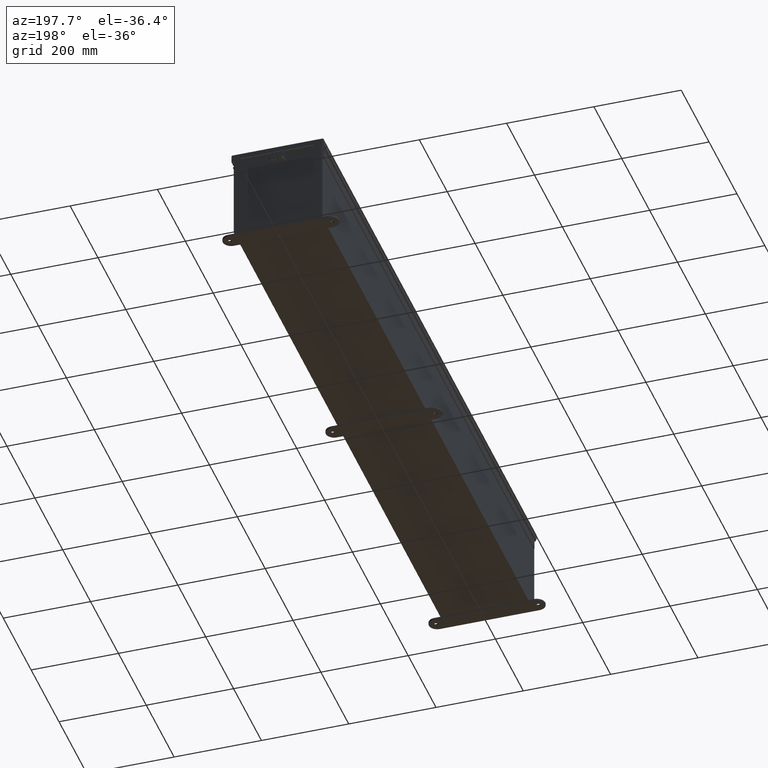
[diagram: clean part render]
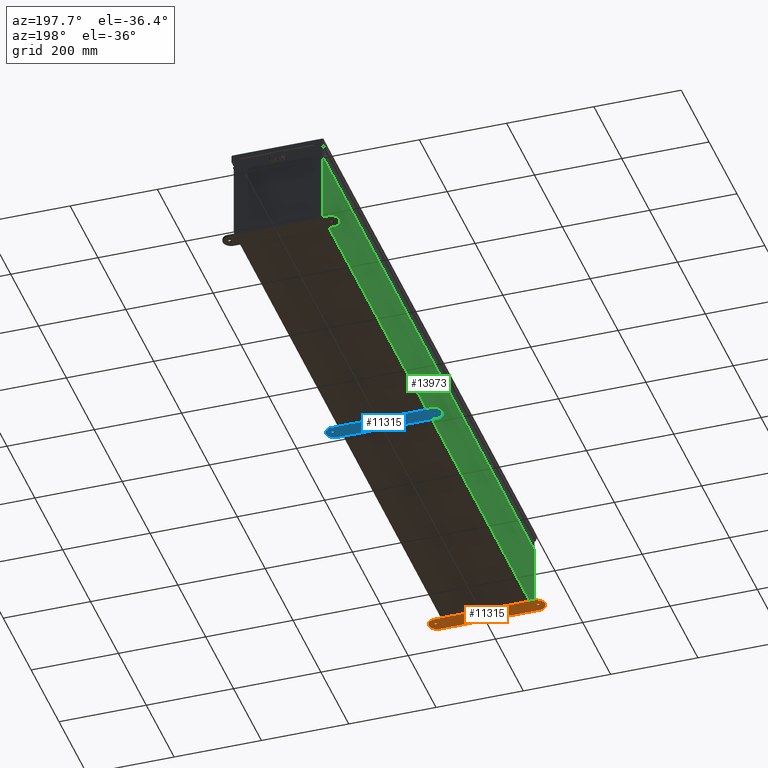
[diagram: same view with three faces highlighted in distinct colors, each labeled with its STEP entity id]
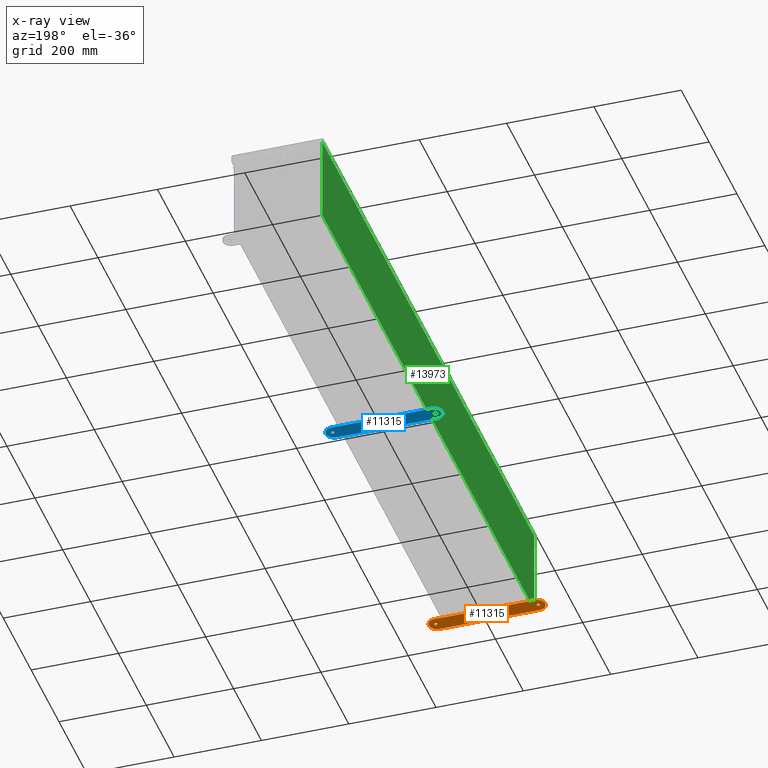
[diagram: x-ray of the same camera — body ghosted, the three highlighted faces saturated]
A machine part, auxiliary view with three faces highlighted in distinct colors.
The next image is the same camera in x-ray (body ghosted, the three faces saturated) — at least one of them is partly hidden behind the body in this view.
Their STEP definitions:

[orange] entity #11315 — the highlighted planar face has unit normal (0, 0, -1).
#2110 = CIRCLE ( 'NONE', #36729, 0.7500000000000010000 ) ;
#2497 = EDGE_LOOP ( 'NONE', ( #22488, #4174, #37181, #6387, #4577 ) ) ;
#3090 = ORIENTED_EDGE ( 'NONE', *, *, #26340, .T. ) ;
#3127 = AXIS2_PLACEMENT_3D ( 'NONE', #37023, #16832, #40380 ) ;
#3334 = CIRCLE ( 'NONE', #41026, 0.7499999999999998900 ) ;
#4174 = ORIENTED_EDGE ( 'NONE', *, *, #28896, .F. ) ;
#4577 = ORIENTED_EDGE ( 'NONE', *, *, #15843, .F. ) ;
#4733 = CIRCLE ( 'NONE', #36041, 0.1564999999999992800 ) ;
#4860 = DIRECTION ( 'NONE',  ( 0.0000000000000000000, 0.0000000000000000000, 1.000000000000000000 ) ) ;
#5034 = VERTEX_POINT ( 'NONE', #17304 ) ;
#5426 = CARTESIAN_POINT ( 'NONE',  ( -4.499999999999999100, 0.4120940649496124300, -0.1345000000000000100 ) ) ;
#5737 = CARTESIAN_POINT ( 'NONE',  ( -4.499999999999999100, 1.162094064949612300, -0.1345000000000000100 ) ) ;
#5880 = DIRECTION ( 'NONE',  ( 0.0000000000000000000, 0.0000000000000000000, 1.000000000000000000 ) ) ;
#6387 = ORIENTED_EDGE ( 'NONE', *, *, #37785, .F. ) ;
#6731 = VERTEX_POINT ( 'NONE', #14986 ) ;
#7054 = EDGE_CURVE ( 'NONE', #15297, #6731, #17706, .T. ) ;
#7294 = EDGE_CURVE ( 'NONE', #13743, #40355, #36150, .T. ) ;
#7750 = DIRECTION ( 'NONE',  ( -1.000000000000000000, 0.0000000000000000000, 0.0000000000000000000 ) ) ;
#8117 = CARTESIAN_POINT ( 'NONE',  ( 5.250000000000000900, 0.4120940649496125900, -0.1345000000000000100 ) ) ;
#8376 = FACE_BOUND ( 'NONE', #28725, .T. ) ;
#8607 = EDGE_CURVE ( 'NONE', #23511, #16640, #3334, .T. ) ;
#8809 = DIRECTION ( 'NONE',  ( 1.000000000000000000, 0.0000000000000000000, 0.0000000000000000000 ) ) ;
#9206 = AXIS2_PLACEMENT_3D ( 'NONE', #11018, #34578, #14408 ) ;
#11018 = CARTESIAN_POINT ( 'NONE',  ( 4.499999999999999100, 0.4120940649496125900, -0.1345000000000000100 ) ) ;
#11315 = ADVANCED_FACE ( 'NONE', ( #33122, #15220, #8376 ), #17758, .T. ) ;
#13446 = EDGE_CURVE ( 'NONE', #40355, #13743, #38375, .T. ) ;
#13683 = LINE ( 'NONE', #5737, #30507 ) ;
#13743 = VERTEX_POINT ( 'NONE', #31823 ) ;
#14408 = DIRECTION ( 'NONE',  ( -1.000000000000000000, 0.0000000000000000000, 0.0000000000000000000 ) ) ;
#14986 = CARTESIAN_POINT ( 'NONE',  ( -4.468500000000000600, 0.4120940649496085400, -0.1345000000000000100 ) ) ;
#15220 = FACE_BOUND ( 'NONE', #22648, .T. ) ;
#15297 = VERTEX_POINT ( 'NONE', #34925 ) ;
#15813 = CARTESIAN_POINT ( 'NONE',  ( -4.499999999999999100, -0.3379059350503874600, -0.1345000000000000100 ) ) ;
#15843 = EDGE_CURVE ( 'NONE', #31088, #5034, #39715, .T. ) ;
#16514 = CARTESIAN_POINT ( 'NONE',  ( 4.468500000000000600, 0.4120940649496085400, -0.1345000000000000100 ) ) ;
#16640 = VERTEX_POINT ( 'NONE', #18918 ) ;
#16731 = DIRECTION ( 'NONE',  ( 0.0000000000000000000, 0.0000000000000000000, 1.000000000000000000 ) ) ;
#16832 = DIRECTION ( 'NONE',  ( -0.0000000000000000000, -0.0000000000000000000, -1.000000000000000000 ) ) ;
#17304 = CARTESIAN_POINT ( 'NONE',  ( 4.499999999999999100, 1.162094064949613400, -0.1345000000000000100 ) ) ;
#17706 = CIRCLE ( 'NONE', #28011, 0.1564999999999992800 ) ;
#17758 = PLANE ( 'NONE',  #34061 ) ;
#18046 = DIRECTION ( 'NONE',  ( -0.0000000000000000000, -0.0000000000000000000, -1.000000000000000000 ) ) ;
#18918 = CARTESIAN_POINT ( 'NONE',  ( -4.499999999999999100, -0.3379059350503874600, -0.1345000000000000100 ) ) ;
#19745 = VECTOR ( 'NONE', #36007, 39.37007874015748100 ) ;
#21119 = CARTESIAN_POINT ( 'NONE',  ( 4.499999999999999100, 0.4120940649496125900, -0.1345000000000000100 ) ) ;
#21614 = VERTEX_POINT ( 'NONE', #42590 ) ;
#21852 = LINE ( 'NONE', #15813, #19745 ) ;
#22306 = ORIENTED_EDGE ( 'NONE', *, *, #7054, .T. ) ;
#22488 = ORIENTED_EDGE ( 'NONE', *, *, #37619, .F. ) ;
#22648 = EDGE_LOOP ( 'NONE', ( #3090, #22306 ) ) ;
#23010 = ORIENTED_EDGE ( 'NONE', *, *, #13446, .F. ) ;
#23511 = VERTEX_POINT ( 'NONE', #35757 ) ;
#24998 = CARTESIAN_POINT ( 'NONE',  ( 4.499999999999999100, 0.4120940649496125900, -0.1345000000000000100 ) ) ;
#26015 = CARTESIAN_POINT ( 'NONE',  ( -4.625000000000000000, 0.4120940649496085400, -0.1345000000000000100 ) ) ;
#26340 = EDGE_CURVE ( 'NONE', #6731, #15297, #4733, .T. ) ;
#26852 = ORIENTED_EDGE ( 'NONE', *, *, #7294, .F. ) ;
#27898 = DIRECTION ( 'NONE',  ( -0.0000000000000000000, 0.0000000000000000000, -1.000000000000000000 ) ) ;
#28011 = AXIS2_PLACEMENT_3D ( 'NONE', #36922, #16731, #40279 ) ;
#28390 = DIRECTION ( 'NONE',  ( -1.000000000000000000, 0.0000000000000000000, 0.0000000000000000000 ) ) ;
#28725 = EDGE_LOOP ( 'NONE', ( #26852, #23010 ) ) ;
#28896 = EDGE_CURVE ( 'NONE', #16640, #21614, #21852, .T. ) ;
#28945 = DIRECTION ( 'NONE',  ( 0.0000000000000000000, 0.0000000000000000000, 1.000000000000000000 ) ) ;
#29403 = DIRECTION ( 'NONE',  ( -1.000000000000000000, 0.0000000000000000000, 0.0000000000000000000 ) ) ;
#30507 = VECTOR ( 'NONE', #39438, 39.37007874015748100 ) ;
#31088 = VERTEX_POINT ( 'NONE', #8117 ) ;
#31823 = CARTESIAN_POINT ( 'NONE',  ( 4.781499999999999400, 0.4120940649496085400, -0.1345000000000000100 ) ) ;
#33122 = FACE_OUTER_BOUND ( 'NONE', #2497, .T. ) ;
#34061 = AXIS2_PLACEMENT_3D ( 'NONE', #21119, #27898, #7750 ) ;
#34578 = DIRECTION ( 'NONE',  ( 0.0000000000000000000, 0.0000000000000000000, 1.000000000000000000 ) ) ;
#34925 = CARTESIAN_POINT ( 'NONE',  ( -4.781499999999999400, 0.4120940649496085400, -0.1345000000000000100 ) ) ;
#35757 = CARTESIAN_POINT ( 'NONE',  ( -4.499999999999999100, 1.162094064949612300, -0.1345000000000000100 ) ) ;
#36007 = DIRECTION ( 'NONE',  ( 1.000000000000000000, -1.214154663850783900E-016, 0.0000000000000000000 ) ) ;
#36041 = AXIS2_PLACEMENT_3D ( 'NONE', #26015, #5880, #29403 ) ;
#36150 = CIRCLE ( 'NONE', #42961, 0.1564999999999992800 ) ;
#36729 = AXIS2_PLACEMENT_3D ( 'NONE', #24998, #4860, #28390 ) ;
#36922 = CARTESIAN_POINT ( 'NONE',  ( -4.625000000000000000, 0.4120940649496085400, -0.1345000000000000100 ) ) ;
#37023 = CARTESIAN_POINT ( 'NONE',  ( 4.625000000000000000, 0.4120940649496085400, -0.1345000000000000100 ) ) ;
#37181 = ORIENTED_EDGE ( 'NONE', *, *, #8607, .F. ) ;
#37619 = EDGE_CURVE ( 'NONE', #21614, #31088, #2110, .T. ) ;
#37785 = EDGE_CURVE ( 'NONE', #5034, #23511, #13683, .T. ) ;
#38220 = CARTESIAN_POINT ( 'NONE',  ( 4.625000000000000000, 0.4120940649496085400, -0.1345000000000000100 ) ) ;
#38375 = CIRCLE ( 'NONE', #3127, 0.1564999999999992800 ) ;
#39438 = DIRECTION ( 'NONE',  ( -1.000000000000000000, -1.214154663850783900E-016, -0.0000000000000000000 ) ) ;
#39715 = CIRCLE ( 'NONE', #9206, 0.7500000000000010000 ) ;
#40279 = DIRECTION ( 'NONE',  ( -1.000000000000000000, 0.0000000000000000000, 0.0000000000000000000 ) ) ;
#40355 = VERTEX_POINT ( 'NONE', #16514 ) ;
#40380 = DIRECTION ( 'NONE',  ( -1.000000000000000000, 0.0000000000000000000, 0.0000000000000000000 ) ) ;
#41026 = AXIS2_PLACEMENT_3D ( 'NONE', #5426, #28945, #8809 ) ;
#41581 = DIRECTION ( 'NONE',  ( -1.000000000000000000, 0.0000000000000000000, 0.0000000000000000000 ) ) ;
#42590 = CARTESIAN_POINT ( 'NONE',  ( 4.499999999999999100, -0.3379059350503885700, -0.1345000000000000100 ) ) ;
#42961 = AXIS2_PLACEMENT_3D ( 'NONE', #38220, #18046, #41581 ) ;

[blue] entity #11315 — the highlighted planar face has unit normal (0, 0, -1).
#2110 = CIRCLE ( 'NONE', #36729, 0.7500000000000010000 ) ;
#2497 = EDGE_LOOP ( 'NONE', ( #22488, #4174, #37181, #6387, #4577 ) ) ;
#3090 = ORIENTED_EDGE ( 'NONE', *, *, #26340, .T. ) ;
#3127 = AXIS2_PLACEMENT_3D ( 'NONE', #37023, #16832, #40380 ) ;
#3334 = CIRCLE ( 'NONE', #41026, 0.7499999999999998900 ) ;
#4174 = ORIENTED_EDGE ( 'NONE', *, *, #28896, .F. ) ;
#4577 = ORIENTED_EDGE ( 'NONE', *, *, #15843, .F. ) ;
#4733 = CIRCLE ( 'NONE', #36041, 0.1564999999999992800 ) ;
#4860 = DIRECTION ( 'NONE',  ( 0.0000000000000000000, 0.0000000000000000000, 1.000000000000000000 ) ) ;
#5034 = VERTEX_POINT ( 'NONE', #17304 ) ;
#5426 = CARTESIAN_POINT ( 'NONE',  ( -4.499999999999999100, 0.4120940649496124300, -0.1345000000000000100 ) ) ;
#5737 = CARTESIAN_POINT ( 'NONE',  ( -4.499999999999999100, 1.162094064949612300, -0.1345000000000000100 ) ) ;
#5880 = DIRECTION ( 'NONE',  ( 0.0000000000000000000, 0.0000000000000000000, 1.000000000000000000 ) ) ;
#6387 = ORIENTED_EDGE ( 'NONE', *, *, #37785, .F. ) ;
#6731 = VERTEX_POINT ( 'NONE', #14986 ) ;
#7054 = EDGE_CURVE ( 'NONE', #15297, #6731, #17706, .T. ) ;
#7294 = EDGE_CURVE ( 'NONE', #13743, #40355, #36150, .T. ) ;
#7750 = DIRECTION ( 'NONE',  ( -1.000000000000000000, 0.0000000000000000000, 0.0000000000000000000 ) ) ;
#8117 = CARTESIAN_POINT ( 'NONE',  ( 5.250000000000000900, 0.4120940649496125900, -0.1345000000000000100 ) ) ;
#8376 = FACE_BOUND ( 'NONE', #28725, .T. ) ;
#8607 = EDGE_CURVE ( 'NONE', #23511, #16640, #3334, .T. ) ;
#8809 = DIRECTION ( 'NONE',  ( 1.000000000000000000, 0.0000000000000000000, 0.0000000000000000000 ) ) ;
#9206 = AXIS2_PLACEMENT_3D ( 'NONE', #11018, #34578, #14408 ) ;
#11018 = CARTESIAN_POINT ( 'NONE',  ( 4.499999999999999100, 0.4120940649496125900, -0.1345000000000000100 ) ) ;
#11315 = ADVANCED_FACE ( 'NONE', ( #33122, #15220, #8376 ), #17758, .T. ) ;
#13446 = EDGE_CURVE ( 'NONE', #40355, #13743, #38375, .T. ) ;
#13683 = LINE ( 'NONE', #5737, #30507 ) ;
#13743 = VERTEX_POINT ( 'NONE', #31823 ) ;
#14408 = DIRECTION ( 'NONE',  ( -1.000000000000000000, 0.0000000000000000000, 0.0000000000000000000 ) ) ;
#14986 = CARTESIAN_POINT ( 'NONE',  ( -4.468500000000000600, 0.4120940649496085400, -0.1345000000000000100 ) ) ;
#15220 = FACE_BOUND ( 'NONE', #22648, .T. ) ;
#15297 = VERTEX_POINT ( 'NONE', #34925 ) ;
#15813 = CARTESIAN_POINT ( 'NONE',  ( -4.499999999999999100, -0.3379059350503874600, -0.1345000000000000100 ) ) ;
#15843 = EDGE_CURVE ( 'NONE', #31088, #5034, #39715, .T. ) ;
#16514 = CARTESIAN_POINT ( 'NONE',  ( 4.468500000000000600, 0.4120940649496085400, -0.1345000000000000100 ) ) ;
#16640 = VERTEX_POINT ( 'NONE', #18918 ) ;
#16731 = DIRECTION ( 'NONE',  ( 0.0000000000000000000, 0.0000000000000000000, 1.000000000000000000 ) ) ;
#16832 = DIRECTION ( 'NONE',  ( -0.0000000000000000000, -0.0000000000000000000, -1.000000000000000000 ) ) ;
#17304 = CARTESIAN_POINT ( 'NONE',  ( 4.499999999999999100, 1.162094064949613400, -0.1345000000000000100 ) ) ;
#17706 = CIRCLE ( 'NONE', #28011, 0.1564999999999992800 ) ;
#17758 = PLANE ( 'NONE',  #34061 ) ;
#18046 = DIRECTION ( 'NONE',  ( -0.0000000000000000000, -0.0000000000000000000, -1.000000000000000000 ) ) ;
#18918 = CARTESIAN_POINT ( 'NONE',  ( -4.499999999999999100, -0.3379059350503874600, -0.1345000000000000100 ) ) ;
#19745 = VECTOR ( 'NONE', #36007, 39.37007874015748100 ) ;
#21119 = CARTESIAN_POINT ( 'NONE',  ( 4.499999999999999100, 0.4120940649496125900, -0.1345000000000000100 ) ) ;
#21614 = VERTEX_POINT ( 'NONE', #42590 ) ;
#21852 = LINE ( 'NONE', #15813, #19745 ) ;
#22306 = ORIENTED_EDGE ( 'NONE', *, *, #7054, .T. ) ;
#22488 = ORIENTED_EDGE ( 'NONE', *, *, #37619, .F. ) ;
#22648 = EDGE_LOOP ( 'NONE', ( #3090, #22306 ) ) ;
#23010 = ORIENTED_EDGE ( 'NONE', *, *, #13446, .F. ) ;
#23511 = VERTEX_POINT ( 'NONE', #35757 ) ;
#24998 = CARTESIAN_POINT ( 'NONE',  ( 4.499999999999999100, 0.4120940649496125900, -0.1345000000000000100 ) ) ;
#26015 = CARTESIAN_POINT ( 'NONE',  ( -4.625000000000000000, 0.4120940649496085400, -0.1345000000000000100 ) ) ;
#26340 = EDGE_CURVE ( 'NONE', #6731, #15297, #4733, .T. ) ;
#26852 = ORIENTED_EDGE ( 'NONE', *, *, #7294, .F. ) ;
#27898 = DIRECTION ( 'NONE',  ( -0.0000000000000000000, 0.0000000000000000000, -1.000000000000000000 ) ) ;
#28011 = AXIS2_PLACEMENT_3D ( 'NONE', #36922, #16731, #40279 ) ;
#28390 = DIRECTION ( 'NONE',  ( -1.000000000000000000, 0.0000000000000000000, 0.0000000000000000000 ) ) ;
#28725 = EDGE_LOOP ( 'NONE', ( #26852, #23010 ) ) ;
#28896 = EDGE_CURVE ( 'NONE', #16640, #21614, #21852, .T. ) ;
#28945 = DIRECTION ( 'NONE',  ( 0.0000000000000000000, 0.0000000000000000000, 1.000000000000000000 ) ) ;
#29403 = DIRECTION ( 'NONE',  ( -1.000000000000000000, 0.0000000000000000000, 0.0000000000000000000 ) ) ;
#30507 = VECTOR ( 'NONE', #39438, 39.37007874015748100 ) ;
#31088 = VERTEX_POINT ( 'NONE', #8117 ) ;
#31823 = CARTESIAN_POINT ( 'NONE',  ( 4.781499999999999400, 0.4120940649496085400, -0.1345000000000000100 ) ) ;
#33122 = FACE_OUTER_BOUND ( 'NONE', #2497, .T. ) ;
#34061 = AXIS2_PLACEMENT_3D ( 'NONE', #21119, #27898, #7750 ) ;
#34578 = DIRECTION ( 'NONE',  ( 0.0000000000000000000, 0.0000000000000000000, 1.000000000000000000 ) ) ;
#34925 = CARTESIAN_POINT ( 'NONE',  ( -4.781499999999999400, 0.4120940649496085400, -0.1345000000000000100 ) ) ;
#35757 = CARTESIAN_POINT ( 'NONE',  ( -4.499999999999999100, 1.162094064949612300, -0.1345000000000000100 ) ) ;
#36007 = DIRECTION ( 'NONE',  ( 1.000000000000000000, -1.214154663850783900E-016, 0.0000000000000000000 ) ) ;
#36041 = AXIS2_PLACEMENT_3D ( 'NONE', #26015, #5880, #29403 ) ;
#36150 = CIRCLE ( 'NONE', #42961, 0.1564999999999992800 ) ;
#36729 = AXIS2_PLACEMENT_3D ( 'NONE', #24998, #4860, #28390 ) ;
#36922 = CARTESIAN_POINT ( 'NONE',  ( -4.625000000000000000, 0.4120940649496085400, -0.1345000000000000100 ) ) ;
#37023 = CARTESIAN_POINT ( 'NONE',  ( 4.625000000000000000, 0.4120940649496085400, -0.1345000000000000100 ) ) ;
#37181 = ORIENTED_EDGE ( 'NONE', *, *, #8607, .F. ) ;
#37619 = EDGE_CURVE ( 'NONE', #21614, #31088, #2110, .T. ) ;
#37785 = EDGE_CURVE ( 'NONE', #5034, #23511, #13683, .T. ) ;
#38220 = CARTESIAN_POINT ( 'NONE',  ( 4.625000000000000000, 0.4120940649496085400, -0.1345000000000000100 ) ) ;
#38375 = CIRCLE ( 'NONE', #3127, 0.1564999999999992800 ) ;
#39438 = DIRECTION ( 'NONE',  ( -1.000000000000000000, -1.214154663850783900E-016, -0.0000000000000000000 ) ) ;
#39715 = CIRCLE ( 'NONE', #9206, 0.7500000000000010000 ) ;
#40279 = DIRECTION ( 'NONE',  ( -1.000000000000000000, 0.0000000000000000000, 0.0000000000000000000 ) ) ;
#40355 = VERTEX_POINT ( 'NONE', #16514 ) ;
#40380 = DIRECTION ( 'NONE',  ( -1.000000000000000000, 0.0000000000000000000, 0.0000000000000000000 ) ) ;
#41026 = AXIS2_PLACEMENT_3D ( 'NONE', #5426, #28945, #8809 ) ;
#41581 = DIRECTION ( 'NONE',  ( -1.000000000000000000, 0.0000000000000000000, 0.0000000000000000000 ) ) ;
#42590 = CARTESIAN_POINT ( 'NONE',  ( 4.499999999999999100, -0.3379059350503885700, -0.1345000000000000100 ) ) ;
#42961 = AXIS2_PLACEMENT_3D ( 'NONE', #38220, #18046, #41581 ) ;

[green] entity #13973 — the highlighted planar face has unit normal (1, 0, 0).
#727 = EDGE_CURVE ( 'NONE', #25680, #14944, #3407, .T. ) ;
#2939 = DIRECTION ( 'NONE',  ( 1.000000000000000000, 0.0000000000000000000, 3.479795166820705900E-015 ) ) ;
#3407 = LINE ( 'NONE', #37814, #29202 ) ;
#4304 = CARTESIAN_POINT ( 'NONE',  ( -4.000000000000029300, -29.92529999999996400, 7.837599999999999200 ) ) ;
#6864 = CARTESIAN_POINT ( 'NONE',  ( -4.000000000000000900, -29.92529999999996800, 2.484274269238439300E-015 ) ) ;
#7757 = EDGE_CURVE ( 'NONE', #43514, #14944, #28173, .T. ) ;
#8102 = LINE ( 'NONE', #33984, #42852 ) ;
#9473 = CARTESIAN_POINT ( 'NONE',  ( -4.000000000000000900, 29.92530000000001100, 0.01300000000000011600 ) ) ;
#9572 = PLANE ( 'NONE',  #30227 ) ;
#10252 = VECTOR ( 'NONE', #27106, 39.37007874015748100 ) ;
#10498 = ORIENTED_EDGE ( 'NONE', *, *, #7757, .F. ) ;
#11921 = EDGE_LOOP ( 'NONE', ( #35172, #18140, #10498, #14954 ) ) ;
#12869 = EDGE_CURVE ( 'NONE', #43514, #34756, #34726, .T. ) ;
#13973 = ADVANCED_FACE ( 'NONE', ( #36237 ), #9572, .F. ) ;
#14333 = CARTESIAN_POINT ( 'NONE',  ( -4.000000000000000900, -29.92529999999996400, 0.01300000000000039000 ) ) ;
#14944 = VERTEX_POINT ( 'NONE', #9473 ) ;
#14954 = ORIENTED_EDGE ( 'NONE', *, *, #12869, .T. ) ;
#16966 = CARTESIAN_POINT ( 'NONE',  ( -4.000000000000000900, 29.92530000000001100, 0.01299999999999984300 ) ) ;
#17025 = DIRECTION ( 'NONE',  ( -3.479795166820706300E-015, 5.567672266913130300E-016, 1.000000000000000000 ) ) ;
#18140 = ORIENTED_EDGE ( 'NONE', *, *, #727, .T. ) ;
#20587 = DIRECTION ( 'NONE',  ( 0.0000000000000000000, 1.000000000000000000, 0.0000000000000000000 ) ) ;
#25680 = VERTEX_POINT ( 'NONE', #31567 ) ;
#25751 = VECTOR ( 'NONE', #17025, 39.37007874015748100 ) ;
#26498 = DIRECTION ( 'NONE',  ( 3.479795166820705900E-015, 0.0000000000000000000, -1.000000000000000000 ) ) ;
#27106 = DIRECTION ( 'NONE',  ( 3.176667049233174100E-032, 1.000000000000000000, -9.128890917264871200E-018 ) ) ;
#28173 = LINE ( 'NONE', #16966, #10252 ) ;
#29202 = VECTOR ( 'NONE', #34410, 39.37007874015748100 ) ;
#29644 = EDGE_CURVE ( 'NONE', #34756, #25680, #8102, .T. ) ;
#30227 = AXIS2_PLACEMENT_3D ( 'NONE', #39910, #2939, #26498 ) ;
#31567 = CARTESIAN_POINT ( 'NONE',  ( -4.000000000000027500, 29.92530000000000700, 7.837599999999999200 ) ) ;
#33984 = CARTESIAN_POINT ( 'NONE',  ( -4.000000000000029300, -29.92529999999996400, 7.837599999999999200 ) ) ;
#34410 = DIRECTION ( 'NONE',  ( 3.479795166820706300E-015, 0.0000000000000000000, -1.000000000000000000 ) ) ;
#34726 = LINE ( 'NONE', #6864, #25751 ) ;
#34756 = VERTEX_POINT ( 'NONE', #4304 ) ;
#35172 = ORIENTED_EDGE ( 'NONE', *, *, #29644, .T. ) ;
#36237 = FACE_OUTER_BOUND ( 'NONE', #11921, .T. ) ;
#37814 = CARTESIAN_POINT ( 'NONE',  ( -4.000000000000000900, 29.92530000000001100, -1.417999849211356600E-014 ) ) ;
#39910 = CARTESIAN_POINT ( 'NONE',  ( -4.000000000000000900, 0.0000000000000000000, -1.417999849211356600E-014 ) ) ;
#42852 = VECTOR ( 'NONE', #20587, 39.37007874015748100 ) ;
#43514 = VERTEX_POINT ( 'NONE', #14333 ) ;